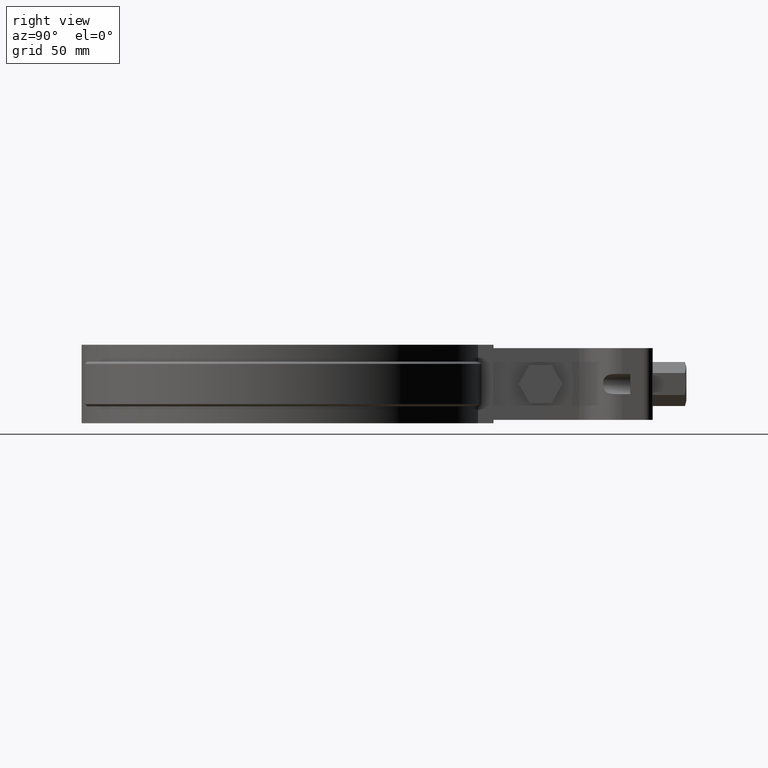
[diagram: clean part render]
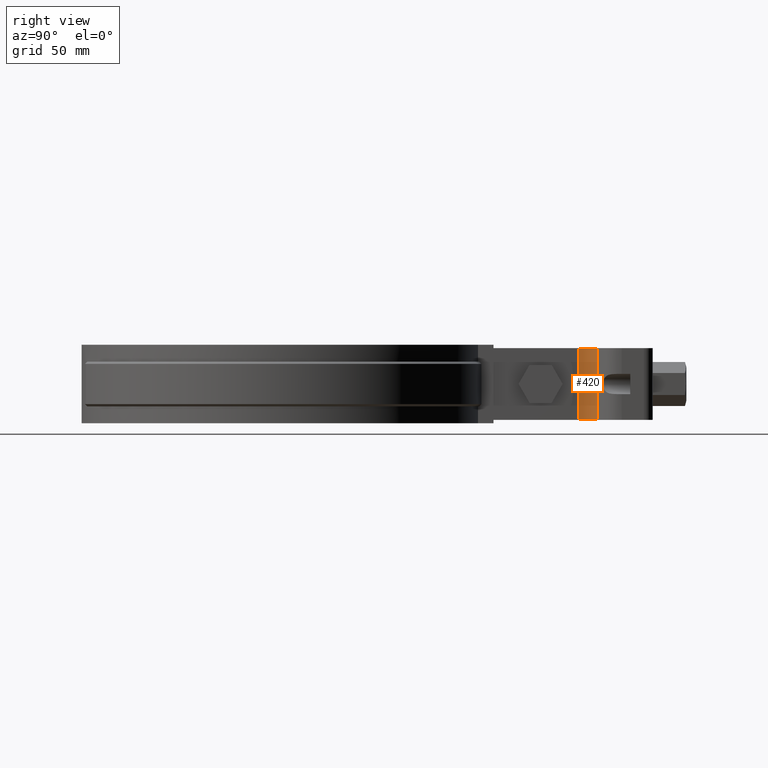
[diagram: same view with one face highlighted and labeled with its STEP entity id]
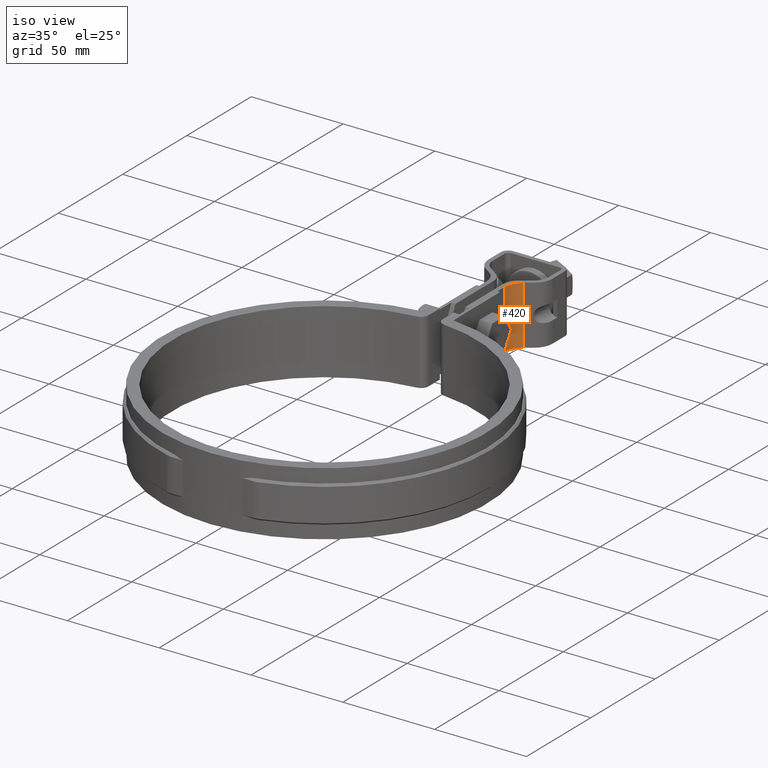
[diagram: same view with one face highlighted and labeled with its STEP entity id]
A machine part, right view. The second image highlights one B-rep face of the part: STEP entity #420.
A second angle (iso view) of the same face is appended — the face is thin or edge-on in the first view.
In plain terms, the highlighted cylindrical surface (edge-blend (fillet) strip) has radius 10 mm, axis along (-0, 0, 1).
Its self-contained STEP definition (entity closure, byte-faithful):
#420 = ADVANCED_FACE( '', ( #713 ), #714, .F. );
#713 = FACE_OUTER_BOUND( '', #1840, .T. );
#714 = CYLINDRICAL_SURFACE( '', #1841, 9.99999999999964 );
#1840 = EDGE_LOOP( '', ( #4478, #4479, #4480, #4481 ) );
#1841 = AXIS2_PLACEMENT_3D( '', #4482, #4483, #4484 );
#4478 = ORIENTED_EDGE( '', *, *, #5295, .F. );
#4479 = ORIENTED_EDGE( '', *, *, #5279, .F. );
#4480 = ORIENTED_EDGE( '', *, *, #5247, .T. );
#4481 = ORIENTED_EDGE( '', *, *, #5323, .T. );
#4482 = CARTESIAN_POINT( '', ( 14.9999999999999, 133.144722265551, -31.9999999999934 ) );
#4483 = DIRECTION( '', ( -9.11521279052786E-016, 1.75137682134619E-013, 1.00000000000000 ) );
#4484 = DIRECTION( '', ( -3.03451482752472E-016, 1.00000000000000, -1.75137682134619E-013 ) );
#5247 = EDGE_CURVE( '', #5936, #5934, #5937, .F. );
#5279 = EDGE_CURVE( '', #5936, #5992, #5995, .T. );
#5295 = EDGE_CURVE( '', #5992, #6025, #6026, .F. );
#5323 = EDGE_CURVE( '', #5934, #6025, #6069, .T. );
#5934 = VERTEX_POINT( '', #8902 );
#5936 = VERTEX_POINT( '', #8905 );
#5937 = CIRCLE( '', #8906, 9.99999999999964 );
#5992 = VERTEX_POINT( '', #9010 );
#5995 = LINE( '', #9014, #9015 );
#6025 = VERTEX_POINT( '', #9053 );
#6026 = CIRCLE( '', #9054, 9.99999999999964 );
#6069 = LINE( '', #9129, #9130 );
#8902 = CARTESIAN_POINT( '', ( 9.26423563648938, 141.336242708441, -31.9999999999949 ) );
#8905 = CARTESIAN_POINT( '', ( 4.99999999999995, 133.144722265551, -31.9999999999934 ) );
#8906 = AXIS2_PLACEMENT_3D( '', #9928, #9929, #9930 );
#9010 = CARTESIAN_POINT( '', ( 4.99999999999994, 133.144722265557, 5.43315392675936E-012 ) );
#9014 = CARTESIAN_POINT( '', ( 4.99999999999995, 133.144722265551, -31.9999999999935 ) );
#9015 = VECTOR( '', #9986, 1000.00000000000 );
#9053 = CARTESIAN_POINT( '', ( 9.26423563648935, 141.336242708447, 4.00052330486315E-012 ) );
#9054 = AXIS2_PLACEMENT_3D( '', #10016, #10017, #10018 );
#9129 = CARTESIAN_POINT( '', ( 9.26423563648949, 141.336242708441, -31.9999999999949 ) );
#9130 = VECTOR( '', #10063, 1000.00000000000 );
#9928 = CARTESIAN_POINT( '', ( 14.9999999999999, 133.144722265551, -31.9999999999934 ) );
#9929 = DIRECTION( '', ( -1.59641724029688E-028, 1.75137682134619E-013, 1.00000000000000 ) );
#9930 = DIRECTION( '', ( 0.000000000000000, -1.00000000000000, 1.75137682134619E-013 ) );
#9986 = DIRECTION( '', ( -9.11521279052786E-016, 1.75137682134619E-013, 1.00000000000000 ) );
#10016 = CARTESIAN_POINT( '', ( 14.9999999999999, 133.144722265557, 5.43315392675936E-012 ) );
#10017 = DIRECTION( '', ( -1.59641724029688E-028, 1.75137682134619E-013, 1.00000000000000 ) );
#10018 = DIRECTION( '', ( 0.000000000000000, -1.00000000000000, 1.75137682134619E-013 ) );
#10063 = DIRECTION( '', ( -9.11521279052786E-016, 1.75137682134619E-013, 1.00000000000000 ) );